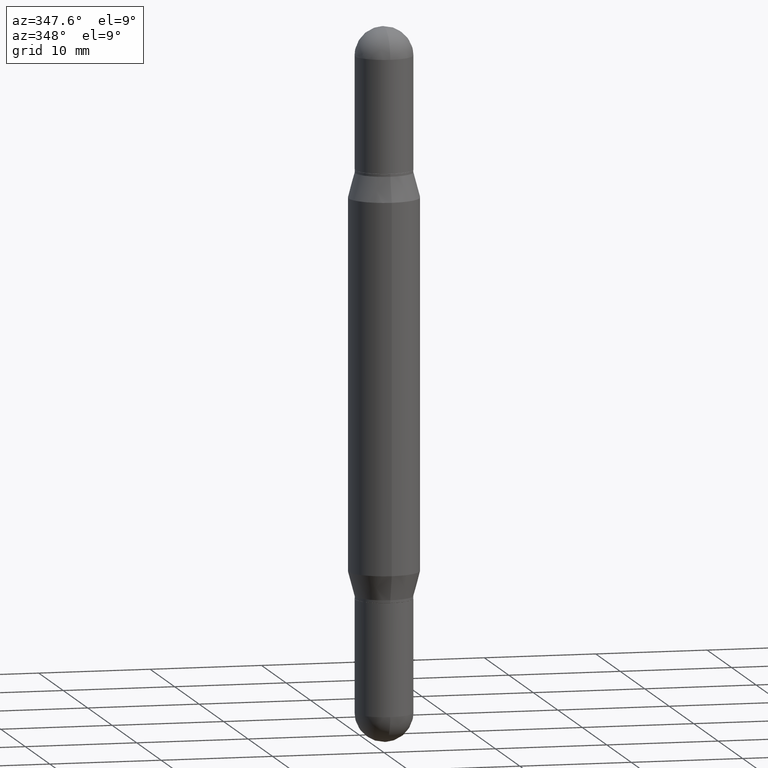
[diagram: clean part render]
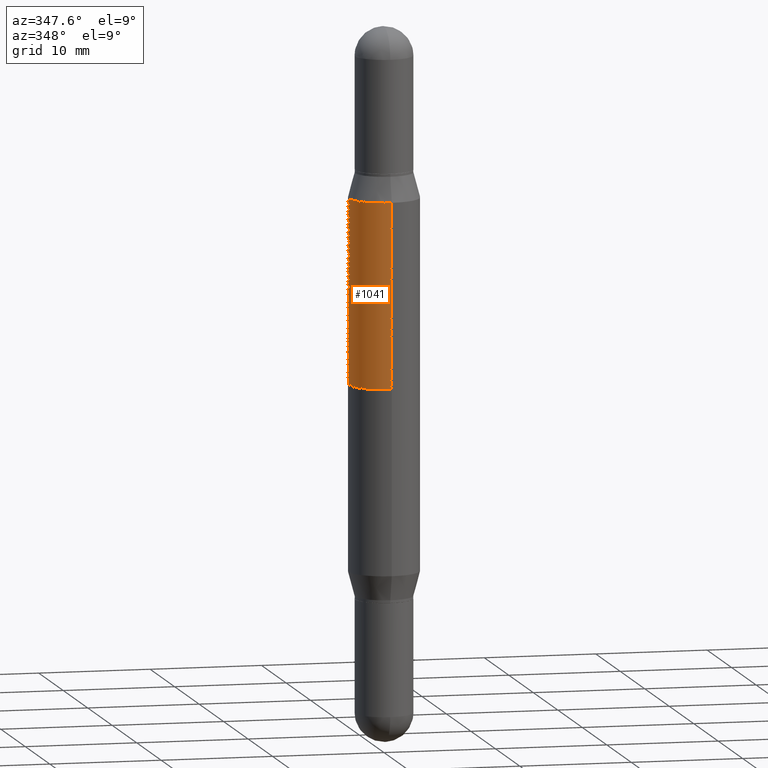
[diagram: same view with one face highlighted and labeled with its STEP entity id]
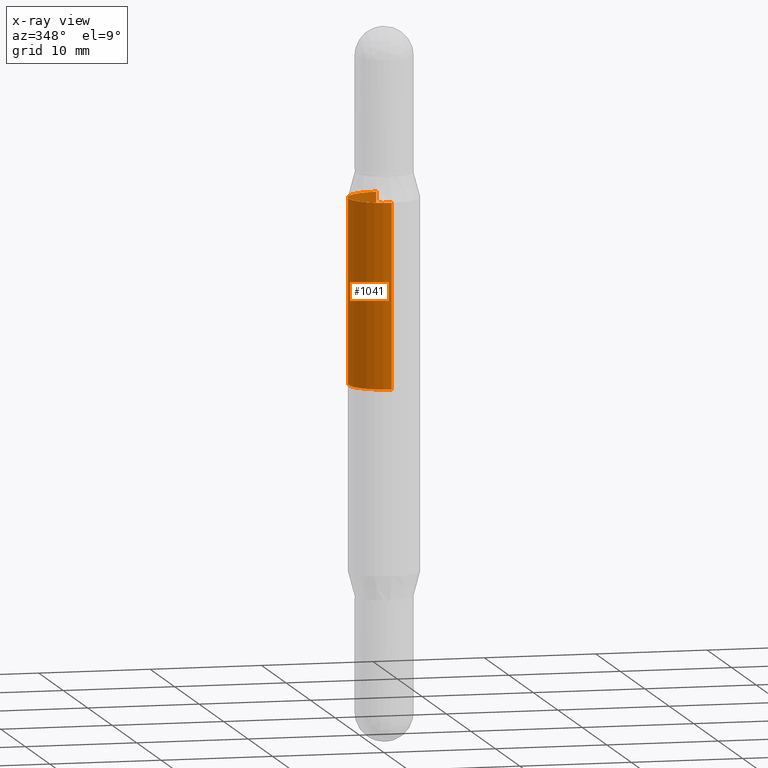
[diagram: x-ray of the same camera — body ghosted, the highlighted face saturated]
A machine part, auxiliary view. The second image highlights one B-rep face of the part: STEP entity #1041.
The next image is the same camera in x-ray: the body ghosted, the highlighted face saturated — about 0% of this face is hidden behind the body in this view.
In plain terms, the highlighted cylindrical surface (edge-blend (fillet) strip) has radius 3.175 mm, axis along (-0, -0, -1).
Its self-contained STEP definition (entity closure, byte-faithful):
#43 = AXIS2_PLACEMENT_3D ( 'NONE', #515, #429, #256 ) ;
#47 = ORIENTED_EDGE ( 'NONE', *, *, #234, .F. ) ;
#56 = AXIS2_PLACEMENT_3D ( 'NONE', #505, #947, #592 ) ;
#69 = EDGE_CURVE ( 'NONE', #396, #1074, #265, .T. ) ;
#123 = EDGE_LOOP ( 'NONE', ( #1049, #919, #47, #428 ) ) ;
#139 = LINE ( 'NONE', #659, #1073 ) ;
#168 = CYLINDRICAL_SURFACE ( 'NONE', #43, 0.1250000000000000000 ) ;
#173 = CARTESIAN_POINT ( 'NONE',  ( 8.575622497214799023E-16, 0.1249999999999956285, -1.250000000000000666 ) ) ;
#178 = VECTOR ( 'NONE', #399, 39.37007874015748143 ) ;
#234 = EDGE_CURVE ( 'NONE', #281, #276, #927, .T. ) ;
#256 = DIRECTION ( 'NONE',  ( -6.982962677686265922E-15, -1.000000000000000000, 4.370956789862821150E-15 ) ) ;
#265 = CIRCLE ( 'NONE', #56, 0.1250000000000000000 ) ;
#271 = CARTESIAN_POINT ( 'NONE',  ( -8.728703347107526719E-16, -0.1250000000000043854, -1.249999999999999556 ) ) ;
#276 = VERTEX_POINT ( 'NONE', #173 ) ;
#281 = VERTEX_POINT ( 'NONE', #271 ) ;
#328 = FACE_OUTER_BOUND ( 'NONE', #123, .T. ) ;
#354 = DIRECTION ( 'NONE',  ( -0.000000000000000000, -3.485547902910486918E-15, -1.000000000000000000 ) ) ;
#367 = CARTESIAN_POINT ( 'NONE',  ( 3.057235026206774713E-29, -4.363780256386504328E-15, -1.250000000000000000 ) ) ;
#383 = EDGE_CURVE ( 'NONE', #396, #276, #139, .T. ) ;
#396 = VERTEX_POINT ( 'NONE', #758 ) ;
#399 = DIRECTION ( 'NONE',  ( -2.445788020965419210E-29, -3.480071600711770532E-15, -1.000000000000000000 ) ) ;
#428 = ORIENTED_EDGE ( 'NONE', *, *, #840, .F. ) ;
#429 = DIRECTION ( 'NONE',  ( -2.445788020965419490E-29, -3.480071600711770532E-15, -1.000000000000000000 ) ) ;
#505 = CARTESIAN_POINT ( 'NONE',  ( 4.653071130747647170E-29, -2.093091276312497727E-15, -0.5975165914374899190 ) ) ;
#508 = AXIS2_PLACEMENT_3D ( 'NONE', #367, #354, #964 ) ;
#515 = CARTESIAN_POINT ( 'NONE',  ( 0.000000000000000000, -8.713869757276216901E-15, -2.500000000000000000 ) ) ;
#592 = DIRECTION ( 'NONE',  ( -6.982962677686265922E-15, -1.000000000000000000, 3.278217592397115862E-15 ) ) ;
#659 = CARTESIAN_POINT ( 'NONE',  ( 8.575622497214413467E-16, 0.1249999999999912847, -2.500000000000000444 ) ) ;
#720 = CARTESIAN_POINT ( 'NONE',  ( -8.728703347107367960E-16, -0.1250000000000021094, -0.5975165914374894749 ) ) ;
#744 = CARTESIAN_POINT ( 'NONE',  ( -8.728703347107832402E-16, -0.1250000000000087153, -2.499999999999999556 ) ) ;
#758 = CARTESIAN_POINT ( 'NONE',  ( 8.575622497214877909E-16, 0.1249999999999979045, -0.5975165914374903631 ) ) ;
#840 = EDGE_CURVE ( 'NONE', #1074, #281, #1086, .T. ) ;
#848 = DIRECTION ( 'NONE',  ( -2.445788020965419210E-29, -3.480071600711770532E-15, -1.000000000000000000 ) ) ;
#919 = ORIENTED_EDGE ( 'NONE', *, *, #383, .T. ) ;
#927 = CIRCLE ( 'NONE', #508, 0.1250000000000000000 ) ;
#947 = DIRECTION ( 'NONE',  ( 2.445788020965419490E-29, 3.480071600711770532E-15, 1.000000000000000000 ) ) ;
#964 = DIRECTION ( 'NONE',  ( 0.000000000000000000, 1.000000000000000000, -4.370956789862821150E-15 ) ) ;
#1041 = ADVANCED_FACE ( 'NONE', ( #328 ), #168, .T. ) ;
#1049 = ORIENTED_EDGE ( 'NONE', *, *, #69, .F. ) ;
#1073 = VECTOR ( 'NONE', #848, 39.37007874015748143 ) ;
#1074 = VERTEX_POINT ( 'NONE', #720 ) ;
#1086 = LINE ( 'NONE', #744, #178 ) ;